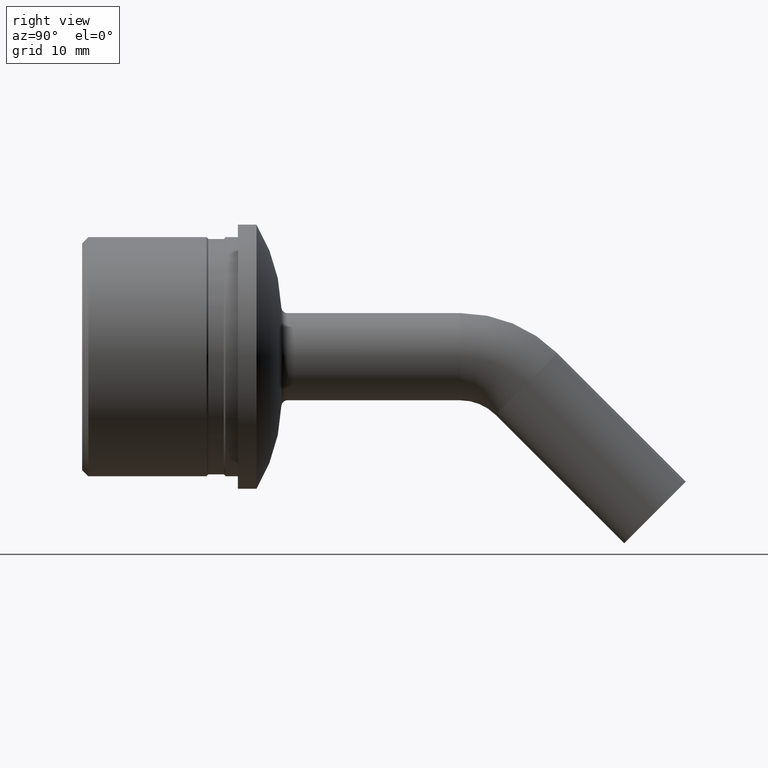
[diagram: clean part render]
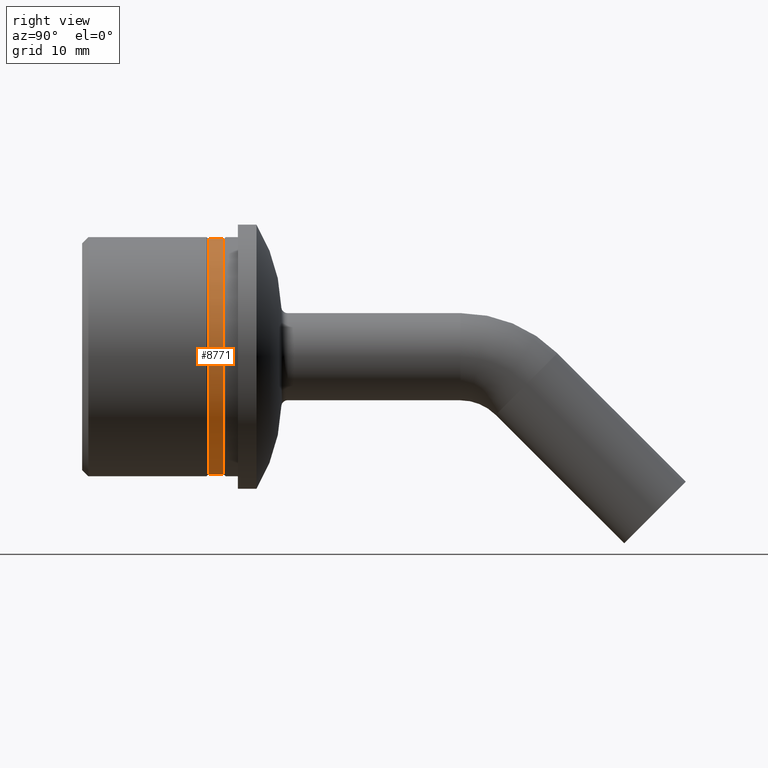
[diagram: same view with one face highlighted and labeled with its STEP entity id]
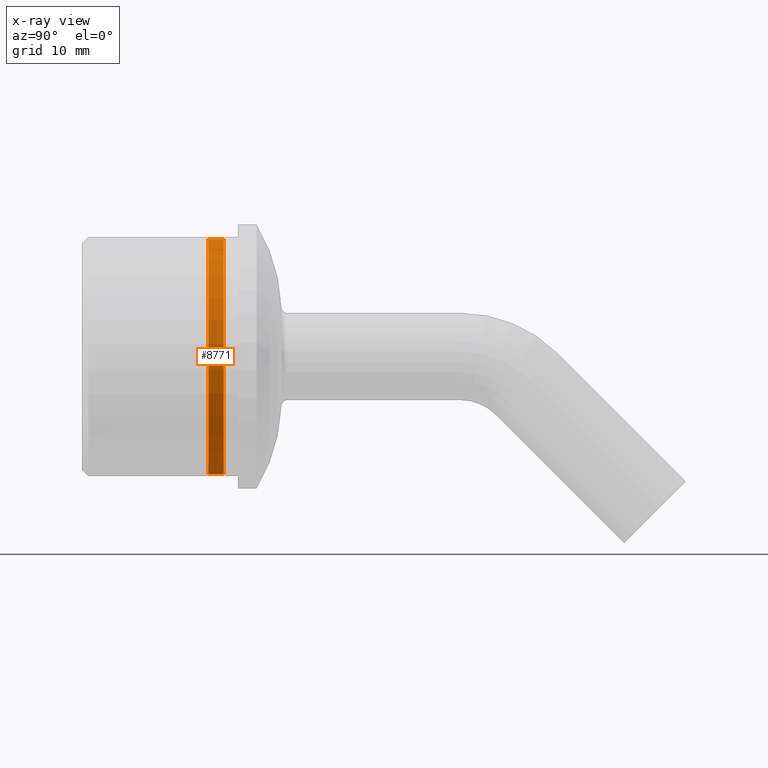
[diagram: x-ray of the same camera — body ghosted, the highlighted face saturated]
A machine part, right view. The second image highlights one B-rep face of the part: STEP entity #8771.
The next image is the same camera in x-ray: the body ghosted, the highlighted face saturated — about 0% of this face is hidden behind the body in this view.
In plain terms, the highlighted cylindrical surface (partial cylindrical patch) has radius 18.9 mm, axis along (-0, 1, -0).
Its self-contained STEP definition (entity closure, byte-faithful):
#39 = AXIS2_PLACEMENT_3D ( 'NONE', #5459, #6649, #4379 ) ;
#401 = CARTESIAN_POINT ( 'NONE',  ( 0.000000000000000000, -11.74999999999998224, 6.166971381420590826E-16 ) ) ;
#418 = AXIS2_PLACEMENT_3D ( 'NONE', #401, #11795, #11011 ) ;
#1163 = ORIENTED_EDGE ( 'NONE', *, *, #7129, .F. ) ;
#1567 = CARTESIAN_POINT ( 'NONE',  ( 0.000000000000000000, -9.249999999999985789, 18.89999999999999858 ) ) ;
#1667 = VERTEX_POINT ( 'NONE', #12600 ) ;
#1756 = CIRCLE ( 'NONE', #5434, 18.89999999999999858 ) ;
#3936 = ORIENTED_EDGE ( 'NONE', *, *, #6498, .T. ) ;
#4379 = DIRECTION ( 'NONE',  ( 0.000000000000000000, 5.248486282060084733E-17, 1.000000000000000000 ) ) ;
#5210 = DIRECTION ( 'NONE',  ( -0.000000000000000000, 1.000000000000000000, -5.248486282060084733E-17 ) ) ;
#5434 = AXIS2_PLACEMENT_3D ( 'NONE', #14073, #10749, #14169 ) ;
#5459 = CARTESIAN_POINT ( 'NONE',  ( 0.000000000000000000, 0.000000000000000000, 0.000000000000000000 ) ) ;
#5643 = EDGE_CURVE ( 'NONE', #10600, #13326, #1756, .T. ) ;
#6226 = DIRECTION ( 'NONE',  ( -0.000000000000000000, 1.000000000000000000, -5.248486282060084733E-17 ) ) ;
#6498 = EDGE_CURVE ( 'NONE', #9481, #10600, #12437, .T. ) ;
#6649 = DIRECTION ( 'NONE',  ( -0.000000000000000000, 1.000000000000000000, -5.248486282060084733E-17 ) ) ;
#7070 = VECTOR ( 'NONE', #5210, 1000.000000000000000 ) ;
#7129 = EDGE_CURVE ( 'NONE', #1667, #13326, #8686, .T. ) ;
#7193 = CARTESIAN_POINT ( 'NONE',  ( 2.314582450388497613E-15, -9.919639073093559228E-16, -18.89999999999999858 ) ) ;
#7508 = CARTESIAN_POINT ( 'NONE',  ( 2.314582450388497613E-15, -11.74999999999998401, -18.89999999999999858 ) ) ;
#8460 = CYLINDRICAL_SURFACE ( 'NONE', #39, 18.89999999999999858 ) ;
#8686 = LINE ( 'NONE', #14262, #12061 ) ;
#8771 = ADVANCED_FACE ( 'NONE', ( #14370 ), #8460, .T. ) ;
#9481 = VERTEX_POINT ( 'NONE', #7508 ) ;
#10556 = ORIENTED_EDGE ( 'NONE', *, *, #5643, .T. ) ;
#10600 = VERTEX_POINT ( 'NONE', #10987 ) ;
#10749 = DIRECTION ( 'NONE',  ( 0.000000000000000000, -1.000000000000000000, 5.248486282060053302E-17 ) ) ;
#10987 = CARTESIAN_POINT ( 'NONE',  ( 2.314582450388497613E-15, -9.249999999999989342, -18.89999999999999858 ) ) ;
#11011 = DIRECTION ( 'NONE',  ( 0.000000000000000000, 9.178431089824376422E-17, 1.000000000000000000 ) ) ;
#11474 = CIRCLE ( 'NONE', #418, 18.89999999999999858 ) ;
#11795 = DIRECTION ( 'NONE',  ( -0.000000000000000000, 1.000000000000000000, -5.248486282060066244E-17 ) ) ;
#12061 = VECTOR ( 'NONE', #6226, 1000.000000000000000 ) ;
#12433 = EDGE_CURVE ( 'NONE', #1667, #9481, #11474, .T. ) ;
#12437 = LINE ( 'NONE', #7193, #7070 ) ;
#12600 = CARTESIAN_POINT ( 'NONE',  ( 0.000000000000000000, -11.74999999999998046, 18.89999999999999858 ) ) ;
#12816 = ORIENTED_EDGE ( 'NONE', *, *, #12433, .T. ) ;
#13326 = VERTEX_POINT ( 'NONE', #1567 ) ;
#14073 = CARTESIAN_POINT ( 'NONE',  ( 0.000000000000000000, -9.249999999999987566, 4.854849810905571522E-16 ) ) ;
#14169 = DIRECTION ( 'NONE',  ( 0.000000000000000000, -9.178431089824376422E-17, -1.000000000000000000 ) ) ;
#14262 = CARTESIAN_POINT ( 'NONE',  ( 0.000000000000000000, 9.919639073093559228E-16, 18.89999999999999858 ) ) ;
#14370 = FACE_OUTER_BOUND ( 'NONE', #14418, .T. ) ;
#14418 = EDGE_LOOP ( 'NONE', ( #12816, #3936, #10556, #1163 ) ) ;